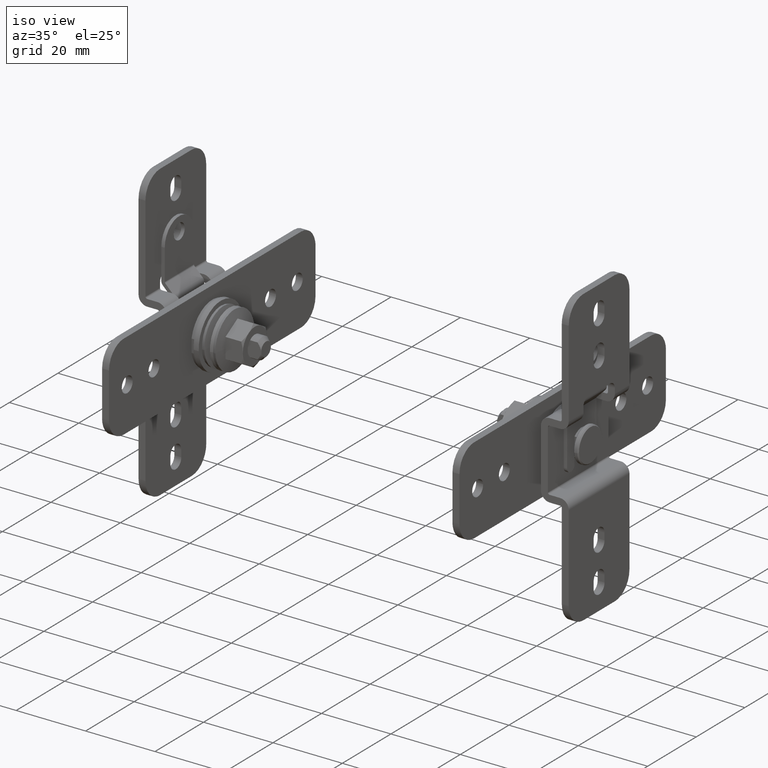
[diagram: clean part render]
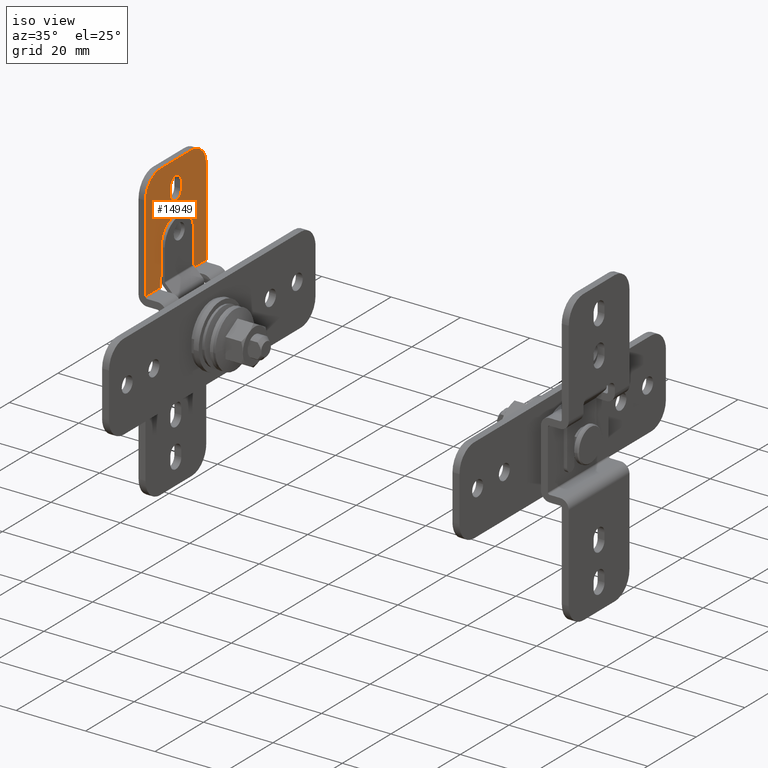
[diagram: same view with one face highlighted and labeled with its STEP entity id]
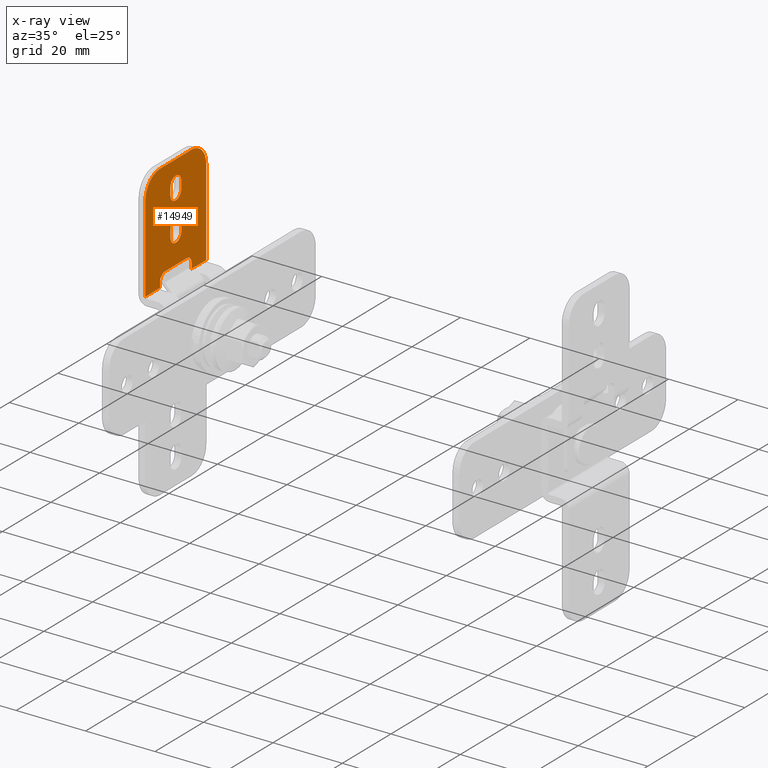
[diagram: x-ray of the same camera — body ghosted, the highlighted face saturated]
A machine part, iso view. The second image highlights one B-rep face of the part: STEP entity #14949.
The next image is the same camera in x-ray: the body ghosted, the highlighted face saturated — about 0% of this face is hidden behind the body in this view.
In plain terms, the highlighted face is a freeform B-spline surface patch.
Its self-contained STEP definition (entity closure, byte-faithful):
#14145=CARTESIAN_POINT('',(2.000000000000115,-6.499999999999840,11.500000000000000));
#14146=VERTEX_POINT('',#14145);
#14160=CARTESIAN_POINT('',(2.000000000000115,-12.499999999999719,11.500000000000000));
#14161=VERTEX_POINT('',#14160);
#14162=CARTESIAN_POINT('',(2.000000000000115,-6.499999999999840,11.500000000000000));
#14163=CARTESIAN_POINT('',(2.000000000000115,-12.499999999999719,11.500000000000000));
#14164=QUASI_UNIFORM_CURVE('',1,(#14162,#14163),.UNSPECIFIED.,.F.,.U.);
#14165=EDGE_CURVE('',#14146,#14161,#14164,.T.);
#14720=CARTESIAN_POINT('',(2.000000000000115,-13.748749951544889,44.048449939915983));
#14721=CARTESIAN_POINT('',(2.000000000000115,-13.748749951544889,9.951549228599218));
#14722=CARTESIAN_POINT('',(2.000000000000115,13.748750622097139,44.048449939915983));
#14723=CARTESIAN_POINT('',(2.000000000000115,13.748750622097139,9.951549228599218));
#14724=B_SPLINE_SURFACE_WITH_KNOTS('',1,1,((#14720,#14722),(#14721,#14723)),.UNSPECIFIED.,.F.,.F.,.U.,(2,2),(2,2),(0.0,34.096900711316763),(0.0,27.497500573642029),.UNSPECIFIED.);
#14725=CARTESIAN_POINT('',(2.000000000000115,6.500000000000000,11.500000000000000));
#14726=VERTEX_POINT('',#14725);
#14727=CARTESIAN_POINT('',(2.000000000000115,6.500000000000000,13.000000000032120));
#14728=VERTEX_POINT('',#14727);
#14729=CARTESIAN_POINT('',(2.000000000000115,6.500000000000000,11.500000000000000));
#14730=CARTESIAN_POINT('',(2.000000000000115,6.500000000000000,13.000000000032120));
#14731=QUASI_UNIFORM_CURVE('',1,(#14729,#14730),.UNSPECIFIED.,.F.,.U.);
#14732=EDGE_CURVE('',#14726,#14728,#14731,.T.);
#14733=ORIENTED_EDGE('',*,*,#14732,.F.);
#14734=CARTESIAN_POINT('',(2.000000000000115,12.499999999999719,11.500000000000000));
#14735=VERTEX_POINT('',#14734);
#14736=CARTESIAN_POINT('',(2.000000000000115,12.499999999999719,11.500000000000000));
#14737=CARTESIAN_POINT('',(2.000000000000115,6.500000000000000,11.500000000000000));
#14738=QUASI_UNIFORM_CURVE('',1,(#14736,#14737),.UNSPECIFIED.,.F.,.U.);
#14739=EDGE_CURVE('',#14735,#14726,#14738,.T.);
#14740=ORIENTED_EDGE('',*,*,#14739,.F.);
#14741=CARTESIAN_POINT('',(2.000000000000115,12.499999999999760,36.500000000000000));
#14742=VERTEX_POINT('',#14741);
#14743=CARTESIAN_POINT('',(2.000000000000115,12.499999999999719,11.500000000000000));
#14744=CARTESIAN_POINT('',(2.000000000000115,12.499999999999760,36.500000000000000));
#14745=QUASI_UNIFORM_CURVE('',1,(#14743,#14744),.UNSPECIFIED.,.F.,.U.);
#14746=EDGE_CURVE('',#14735,#14742,#14745,.T.);
#14747=ORIENTED_EDGE('',*,*,#14746,.T.);
#14748=CARTESIAN_POINT('',(2.000000000000115,6.499999999999730,42.500000000000000));
#14749=VERTEX_POINT('',#14748);
#14750=CARTESIAN_POINT('',(2.000000000000115,12.499999999999730,36.500000000000000));
#14751=CARTESIAN_POINT('',(2.000000000000114,12.499999999999728,42.500000000000000));
#14752=CARTESIAN_POINT('',(2.000000000000115,6.499999999999730,42.499999999999993));
#14760=(BOUNDED_CURVE()B_SPLINE_CURVE(2,(#14750,#14751,#14752),.UNSPECIFIED.,.F.,.U.)CURVE()GEOMETRIC_REPRESENTATION_ITEM()QUASI_UNIFORM_CURVE()RATIONAL_B_SPLINE_CURVE((1.0,0.707106781186548,1.0))REPRESENTATION_ITEM(''));
#14761=EDGE_CURVE('',#14742,#14749,#14760,.T.);
#14762=ORIENTED_EDGE('',*,*,#14761,.T.);
#14763=CARTESIAN_POINT('',(2.000000000000115,-6.499999999999730,42.500000000000000));
#14764=VERTEX_POINT('',#14763);
#14765=CARTESIAN_POINT('',(2.000000000000115,6.499999999999730,42.500000000000000));
#14766=CARTESIAN_POINT('',(2.000000000000115,-6.499999999999730,42.500000000000000));
#14767=QUASI_UNIFORM_CURVE('',1,(#14765,#14766),.UNSPECIFIED.,.F.,.U.);
#14768=EDGE_CURVE('',#14749,#14764,#14767,.T.);
#14769=ORIENTED_EDGE('',*,*,#14768,.T.);
#14770=CARTESIAN_POINT('',(2.000000000000115,-12.499999999999760,36.500000000000000));
#14771=VERTEX_POINT('',#14770);
#14772=CARTESIAN_POINT('',(2.000000000000115,-6.499999999999730,42.500000000000000));
#14773=CARTESIAN_POINT('',(2.000000000000116,-6.917241726990757,42.500070577144228));
#14774=CARTESIAN_POINT('',(2.000000000000120,-7.628977154147798,42.425435321380462));
#14775=CARTESIAN_POINT('',(2.000000000000113,-8.645342708267917,42.130683088088823));
#14776=CARTESIAN_POINT('',(2.000000000000117,-9.714358515700987,41.625273093704692));
#14777=CARTESIAN_POINT('',(2.000000000000113,-10.788287452187109,40.787207667290808));
#14778=CARTESIAN_POINT('',(2.000000000000112,-11.617759825099331,39.710564111681130));
#14779=CARTESIAN_POINT('',(2.000000000000122,-12.114753829329800,38.692150801551861));
#14780=CARTESIAN_POINT('',(2.000000000000099,-12.422874153494369,37.653523822468159));
#14781=CARTESIAN_POINT('',(2.000000000000127,-12.500066101118430,36.917239569130388));
#14782=CARTESIAN_POINT('',(2.000000000000115,-12.499999999999760,36.500000000000000));
#14783=B_SPLINE_CURVE_WITH_KNOTS('',3,(#14772,#14773,#14774,#14775,#14776,#14777,#14778,#14779,#14780,#14781,#14782),.UNSPECIFIED.,.F.,.U.,(4,1,1,1,1,1,1,1,4),(0.000000131910243,1.251715702097847,2.135310829182034,3.166169956203873,4.786010447104149,6.185030393495998,7.215892496058859,8.173124531923632,9.424837097258513),.UNSPECIFIED.);
#14784=EDGE_CURVE('',#14764,#14771,#14783,.T.);
#14785=ORIENTED_EDGE('',*,*,#14784,.T.);
#14786=CARTESIAN_POINT('',(2.000000000000115,-12.499999999999719,11.500000000000000));
#14787=CARTESIAN_POINT('',(2.000000000000115,-12.499999999999760,36.500000000000000));
#14788=QUASI_UNIFORM_CURVE('',1,(#14786,#14787),.UNSPECIFIED.,.F.,.U.);
#14789=EDGE_CURVE('',#14161,#14771,#14788,.T.);
#14790=ORIENTED_EDGE('',*,*,#14789,.F.);
#14791=ORIENTED_EDGE('',*,*,#14165,.F.);
#14792=CARTESIAN_POINT('',(2.000000000000115,-6.499999999999890,13.000000000032120));
#14793=VERTEX_POINT('',#14792);
#14794=CARTESIAN_POINT('',(2.000000000000115,-6.499999999999890,13.000000000032120));
#14795=CARTESIAN_POINT('',(2.000000000000115,-6.499999999999840,11.500000000000000));
#14796=QUASI_UNIFORM_CURVE('',1,(#14794,#14795),.UNSPECIFIED.,.F.,.U.);
#14797=EDGE_CURVE('',#14793,#14146,#14796,.T.);
#14798=ORIENTED_EDGE('',*,*,#14797,.F.);
#14799=CARTESIAN_POINT('',(2.000000000000115,-4.500000000000000,15.000000000032101));
#14800=VERTEX_POINT('',#14799);
#14801=CARTESIAN_POINT('',(2.000000000000115,-4.500000000000000,15.000000000032120));
#14802=CARTESIAN_POINT('',(2.000000000000114,-6.500000000000001,15.000000000032125));
#14803=CARTESIAN_POINT('',(2.000000000000115,-6.500000000000000,13.000000000032120));
#14811=(BOUNDED_CURVE()B_SPLINE_CURVE(2,(#14801,#14802,#14803),.UNSPECIFIED.,.F.,.U.)CURVE()GEOMETRIC_REPRESENTATION_ITEM()QUASI_UNIFORM_CURVE()RATIONAL_B_SPLINE_CURVE((1.0,0.707106781186548,1.0))REPRESENTATION_ITEM(''));
#14812=EDGE_CURVE('',#14800,#14793,#14811,.T.);
#14813=ORIENTED_EDGE('',*,*,#14812,.F.);
#14814=CARTESIAN_POINT('',(2.000000000000115,4.500000000000000,15.000000000032101));
#14815=VERTEX_POINT('',#14814);
#14816=CARTESIAN_POINT('',(2.000000000000115,4.500000000000000,15.000000000032101));
#14817=CARTESIAN_POINT('',(2.000000000000115,-4.500000000000000,15.000000000032101));
#14818=QUASI_UNIFORM_CURVE('',1,(#14816,#14817),.UNSPECIFIED.,.F.,.U.);
#14819=EDGE_CURVE('',#14815,#14800,#14818,.T.);
#14820=ORIENTED_EDGE('',*,*,#14819,.F.);
#14821=CARTESIAN_POINT('',(2.000000000000115,6.500000000000000,13.000000000032120));
#14822=CARTESIAN_POINT('',(2.000000000000114,6.500000000000001,15.000000000032125));
#14823=CARTESIAN_POINT('',(2.000000000000115,4.500000000000000,15.000000000032120));
#14831=(BOUNDED_CURVE()B_SPLINE_CURVE(2,(#14821,#14822,#14823),.UNSPECIFIED.,.F.,.U.)CURVE()GEOMETRIC_REPRESENTATION_ITEM()QUASI_UNIFORM_CURVE()RATIONAL_B_SPLINE_CURVE((1.0,0.707106781186548,1.0))REPRESENTATION_ITEM(''));
#14832=EDGE_CURVE('',#14728,#14815,#14831,.T.);
#14833=ORIENTED_EDGE('',*,*,#14832,.F.);
#14834=EDGE_LOOP('',(#14733,#14740,#14747,#14762,#14769,#14785,#14790,#14791,#14798,#14813,#14820,#14833));
#14835=FACE_OUTER_BOUND('',#14834,.T.);
#14836=CARTESIAN_POINT('',(2.000000000000115,2.250000000000195,23.000000000032099));
#14837=VERTEX_POINT('',#14836);
#14838=CARTESIAN_POINT('',(2.0,-2.249999999999775,23.000000000032099));
#14839=VERTEX_POINT('',#14838);
#14840=CARTESIAN_POINT('',(2.000000000000115,2.250000000000195,23.000000000032099));
#14841=CARTESIAN_POINT('',(2.000000000000105,2.250102680297857,22.779092551515479));
#14842=CARTESIAN_POINT('',(2.000000000000086,2.195321985920855,22.411016085655081));
#14843=CARTESIAN_POINT('',(2.000000000000060,1.990049097675330,21.915436156271578));
#14844=CARTESIAN_POINT('',(2.000000000000039,1.717645935806730,21.518356291399410));
#14845=CARTESIAN_POINT('',(2.000000000000024,1.364816041516098,21.190650377777981));
#14846=CARTESIAN_POINT('',(2.000000000000004,0.873038532383988,20.895702175296641));
#14847=CARTESIAN_POINT('',(2.000000000000009,0.260927331242133,20.726289004075880));
#14848=CARTESIAN_POINT('',(1.999999999999986,-0.370989745340709,20.757488142305160));
#14849=CARTESIAN_POINT('',(2.000000000000024,-0.866563815188778,20.907865891920149));
#14850=CARTESIAN_POINT('',(1.999999999999981,-1.307042091744192,21.143262439496361));
#14851=CARTESIAN_POINT('',(2.000000000000017,-1.752439776460997,21.536968985216351));
#14852=CARTESIAN_POINT('',(1.999999999999987,-2.143681433412387,22.171844602157250));
#14853=CARTESIAN_POINT('',(2.000000000000005,-2.250287858203142,22.705460046687040));
#14854=CARTESIAN_POINT('',(2.0,-2.249999999999775,23.000000000032099));
#14855=B_SPLINE_CURVE_WITH_KNOTS('',3,(#14840,#14841,#14842,#14843,#14844,#14845,#14846,#14847,#14848,#14849,#14850,#14851,#14852,#14853,#14854),.UNSPECIFIED.,.F.,.U.,(4,1,1,1,1,1,1,1,1,1,1,1,4),(0.000000196250717,0.662697180073176,1.104458431367636,1.601516846082536,2.098559095872880,2.540348542934101,3.313537489156935,3.976131615734519,4.417969645472912,4.859749523920623,5.467256219437843,6.185215054327831,7.068760850378423),.UNSPECIFIED.);
#14856=EDGE_CURVE('',#14837,#14839,#14855,.T.);
#14857=ORIENTED_EDGE('',*,*,#14856,.T.);
#14858=CARTESIAN_POINT('',(2.0,-2.249999999999775,25.000000000032099));
#14859=VERTEX_POINT('',#14858);
#14860=CARTESIAN_POINT('',(2.0,-2.249999999999775,23.000000000032099));
#14861=CARTESIAN_POINT('',(2.0,-2.249999999999775,25.000000000032099));
#14862=QUASI_UNIFORM_CURVE('',1,(#14860,#14861),.UNSPECIFIED.,.F.,.U.);
#14863=EDGE_CURVE('',#14839,#14859,#14862,.T.);
#14864=ORIENTED_EDGE('',*,*,#14863,.T.);
#14865=CARTESIAN_POINT('',(2.0,2.250000000000230,25.000000000032099));
#14866=VERTEX_POINT('',#14865);
#14867=CARTESIAN_POINT('',(2.0,-2.249999999999775,25.000000000032099));
#14868=CARTESIAN_POINT('',(2.000000000000001,-2.250074786646445,25.220897063042319));
#14869=CARTESIAN_POINT('',(2.0,-2.181732850340058,25.681062208506351));
#14870=CARTESIAN_POINT('',(1.999999999999998,-1.903767892778171,26.250690398959510));
#14871=CARTESIAN_POINT('',(1.999999999999995,-1.462023752889765,26.750237064212751));
#14872=CARTESIAN_POINT('',(2.000000000000006,-0.972848157926503,27.060009630011560));
#14873=CARTESIAN_POINT('',(1.999999999999993,-0.335560937619370,27.253359642423359));
#14874=CARTESIAN_POINT('',(2.000000000000003,0.261971729374314,27.268008817077689));
#14875=CARTESIAN_POINT('',(2.0,0.833938358319767,27.109584358357100));
#14876=CARTESIAN_POINT('',(2.0,1.274388838970600,26.874150746726301));
#14877=CARTESIAN_POINT('',(2.0,1.699621393440565,26.516497998935069));
#14878=CARTESIAN_POINT('',(2.0,2.121594246595314,25.901622171581860));
#14879=CARTESIAN_POINT('',(2.0,2.250487465389686,25.331408740995819));
#14880=CARTESIAN_POINT('',(2.0,2.250000000000230,25.000000000032099));
#14881=B_SPLINE_CURVE_WITH_KNOTS('',3,(#14867,#14868,#14869,#14870,#14871,#14872,#14873,#14874,#14875,#14876,#14877,#14878,#14879,#14880),.UNSPECIFIED.,.F.,.U.,(4,1,1,1,1,1,1,1,1,1,1,4),(0.000000196251151,0.662697180073825,1.380600253157867,1.877644395310987,2.650833015940489,3.092648653155509,3.865658624568815,4.417969645473349,4.859749523920979,5.356798497877848,6.074745185794130,7.068760850378427),.UNSPECIFIED.);
#14882=EDGE_CURVE('',#14859,#14866,#14881,.T.);
#14883=ORIENTED_EDGE('',*,*,#14882,.T.);
#14884=CARTESIAN_POINT('',(2.0,2.250000000000230,25.000000000032099));
#14885=CARTESIAN_POINT('',(2.000000000000115,2.250000000000195,23.000000000032099));
#14886=QUASI_UNIFORM_CURVE('',1,(#14884,#14885),.UNSPECIFIED.,.F.,.U.);
#14887=EDGE_CURVE('',#14866,#14837,#14886,.T.);
#14888=ORIENTED_EDGE('',*,*,#14887,.T.);
#14889=EDGE_LOOP('',(#14857,#14864,#14883,#14888));
#14890=FACE_BOUND('',#14889,.T.);
#14891=CARTESIAN_POINT('',(2.0,-2.249999999999775,36.000000000032102));
#14892=VERTEX_POINT('',#14891);
#14893=CARTESIAN_POINT('',(2.0,2.250000000000230,36.000000000032102));
#14894=VERTEX_POINT('',#14893);
#14895=CARTESIAN_POINT('',(2.0,-2.249999999999775,36.000000000032102));
#14896=CARTESIAN_POINT('',(2.0,-2.250105537889713,36.220907910101623));
#14897=CARTESIAN_POINT('',(2.000000000000002,-2.195318656615053,36.588982819294174));
#14898=CARTESIAN_POINT('',(1.999999999999998,-1.990038234469867,37.084552996134008));
#14899=CARTESIAN_POINT('',(2.000000000000002,-1.675800648156294,37.542791896722981));
#14900=CARTESIAN_POINT('',(1.999999999999998,-1.190782846251970,37.950960064872781));
#14901=CARTESIAN_POINT('',(2.000000000000001,-0.623402447596219,38.185821098380337));
#14902=CARTESIAN_POINT('',(2.0,-0.001306743615624,38.278172591125369));
#14903=CARTESIAN_POINT('',(2.0,0.554820794107030,38.209651146353430));
#14904=CARTESIAN_POINT('',(2.0,1.050361562170682,38.004169714939522));
#14905=CARTESIAN_POINT('',(2.0,1.406576266816379,37.772458063083519));
#14906=CARTESIAN_POINT('',(2.0,1.754953749197645,37.440874891945711));
#14907=CARTESIAN_POINT('',(2.0,2.028439355537607,37.020440772725181));
#14908=CARTESIAN_POINT('',(2.0,2.209110016015536,36.515373582413133));
#14909=CARTESIAN_POINT('',(2.0,2.250042559274610,36.184064613281947));
#14910=CARTESIAN_POINT('',(2.0,2.250000000000230,36.000000000032102));
#14911=B_SPLINE_CURVE_WITH_KNOTS('',3,(#14895,#14896,#14897,#14898,#14899,#14900,#14901,#14902,#14903,#14904,#14905,#14906,#14907,#14908,#14909,#14910),.UNSPECIFIED.,.F.,.U.,(4,1,1,1,1,1,1,1,1,1,1,1,1,4),(0.000000196250113,0.662697180073150,1.104458431367720,1.601516846082784,2.319470932891838,2.982171445035571,3.423961384253977,4.197024913644366,4.638842249682501,5.025449052653081,5.467256219438284,6.074745185794611,6.516561075902753,7.068760850378440),.UNSPECIFIED.);
#14912=EDGE_CURVE('',#14892,#14894,#14911,.T.);
#14913=ORIENTED_EDGE('',*,*,#14912,.T.);
#14914=CARTESIAN_POINT('',(2.0,2.250000000000230,34.000000000032152));
#14915=VERTEX_POINT('',#14914);
#14916=CARTESIAN_POINT('',(2.0,2.250000000000230,34.000000000032152));
#14917=CARTESIAN_POINT('',(2.0,2.250000000000230,36.000000000032102));
#14918=QUASI_UNIFORM_CURVE('',1,(#14916,#14917),.UNSPECIFIED.,.F.,.U.);
#14919=EDGE_CURVE('',#14915,#14894,#14918,.T.);
#14920=ORIENTED_EDGE('',*,*,#14919,.F.);
#14921=CARTESIAN_POINT('',(2.000000000000115,-2.249999999999775,34.000000000032152));
#14922=VERTEX_POINT('',#14921);
#14923=CARTESIAN_POINT('',(2.0,2.250000000000230,34.000000000032152));
#14924=CARTESIAN_POINT('',(2.0,2.250086311338959,33.779097069257823));
#14925=CARTESIAN_POINT('',(2.000000000000001,2.195337767513133,33.411011990478833));
#14926=CARTESIAN_POINT('',(1.999999999999998,1.975914498856920,32.881239145688816));
#14927=CARTESIAN_POINT('',(2.0,1.671245990945992,32.459694914355673));
#14928=CARTESIAN_POINT('',(2.000000000000001,1.274392828742640,32.125834269549749));
#14929=CARTESIAN_POINT('',(1.999999999999998,0.833930581546737,31.890387513967291));
#14930=CARTESIAN_POINT('',(2.0,0.369204209136572,31.761823483147921));
#14931=CARTESIAN_POINT('',(2.000000000000001,-0.221997061363233,31.732627136114619));
#14932=CARTESIAN_POINT('',(1.999999999999996,-0.823434999252890,31.867680188471891));
#14933=CARTESIAN_POINT('',(1.999999999999998,-1.353024922190731,32.176508049900207));
#14934=CARTESIAN_POINT('',(1.999999999999991,-1.714716221483909,32.520897165416343));
#14935=CARTESIAN_POINT('',(2.000000000000004,-1.959671585158883,32.868733162939229));
#14936=CARTESIAN_POINT('',(2.000000000000015,-2.182818737071409,33.355859384735162));
#14937=CARTESIAN_POINT('',(1.999999999999948,-2.250205188413073,33.742272222281713));
#14938=CARTESIAN_POINT('',(2.000000000000115,-2.249999999999775,34.000000000032152));
#14939=B_SPLINE_CURVE_WITH_KNOTS('',3,(#14923,#14924,#14925,#14926,#14927,#14928,#14929,#14930,#14931,#14932,#14933,#14934,#14935,#14936,#14937,#14938),.UNSPECIFIED.,.F.,.U.,(4,1,1,1,1,1,1,1,1,1,1,1,1,4),(0.000000196257657,0.662697180079021,1.104458431372778,1.711966043698562,2.208997066072715,2.650833015943254,3.203102362542697,3.644792945760273,4.417969645474660,5.025449052653993,5.467256219438712,5.909071856491536,6.295655813486937,7.068760850378442),.UNSPECIFIED.);
#14940=EDGE_CURVE('',#14915,#14922,#14939,.T.);
#14941=ORIENTED_EDGE('',*,*,#14940,.T.);
#14942=CARTESIAN_POINT('',(2.0,-2.249999999999775,36.000000000032102));
#14943=CARTESIAN_POINT('',(2.000000000000115,-2.249999999999775,34.000000000032152));
#14944=QUASI_UNIFORM_CURVE('',1,(#14942,#14943),.UNSPECIFIED.,.F.,.U.);
#14945=EDGE_CURVE('',#14892,#14922,#14944,.T.);
#14946=ORIENTED_EDGE('',*,*,#14945,.F.);
#14947=EDGE_LOOP('',(#14913,#14920,#14941,#14946));
#14948=FACE_BOUND('',#14947,.T.);
#14949=ADVANCED_FACE('',(#14835,#14890,#14948),#14724,.T.);